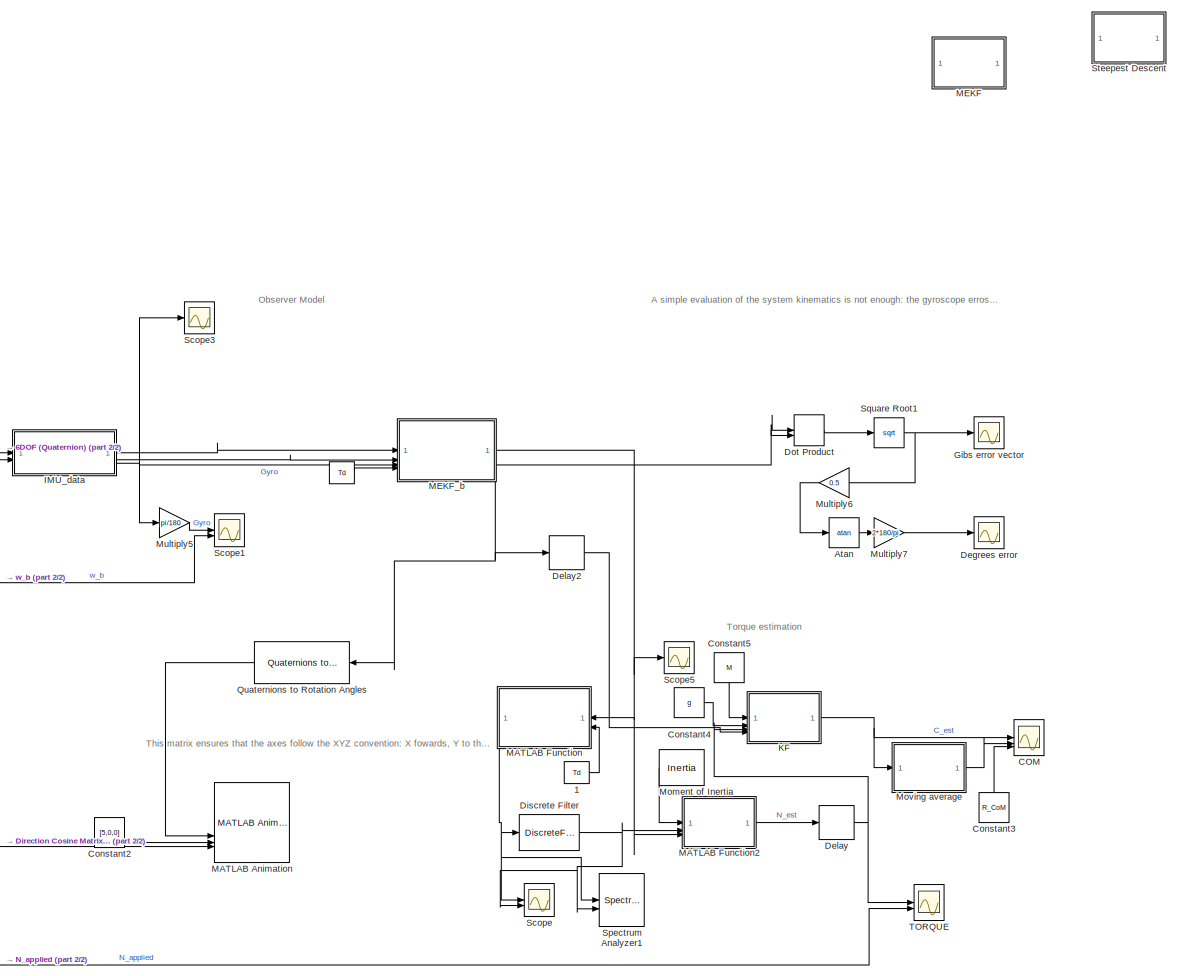
[diagram: root canvas - part 1/2, right side, full height]
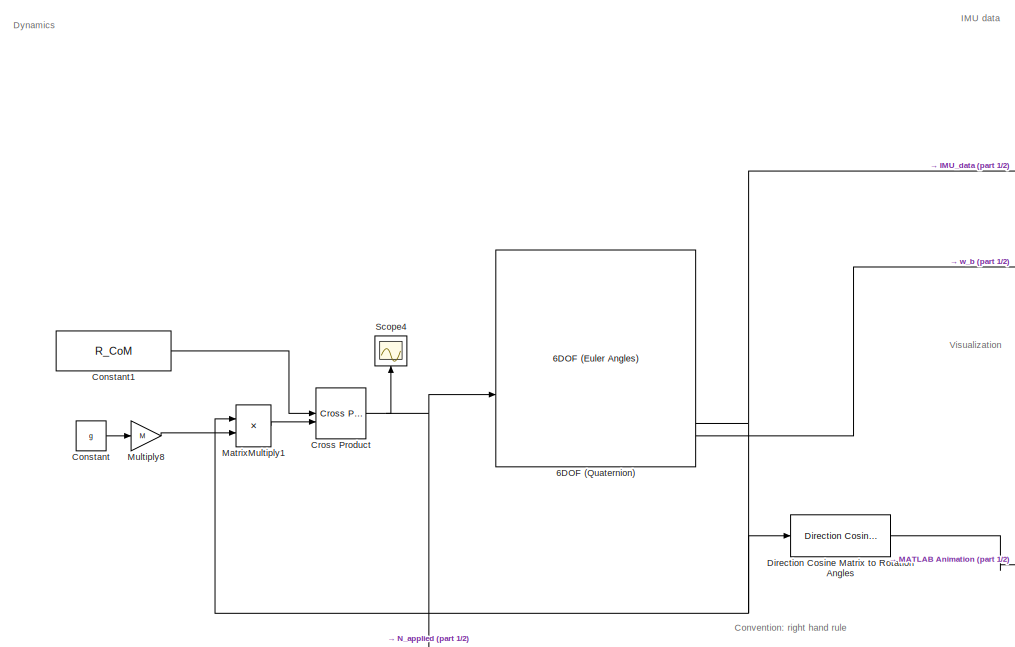
[diagram: root canvas - part 2/2, middle left region]
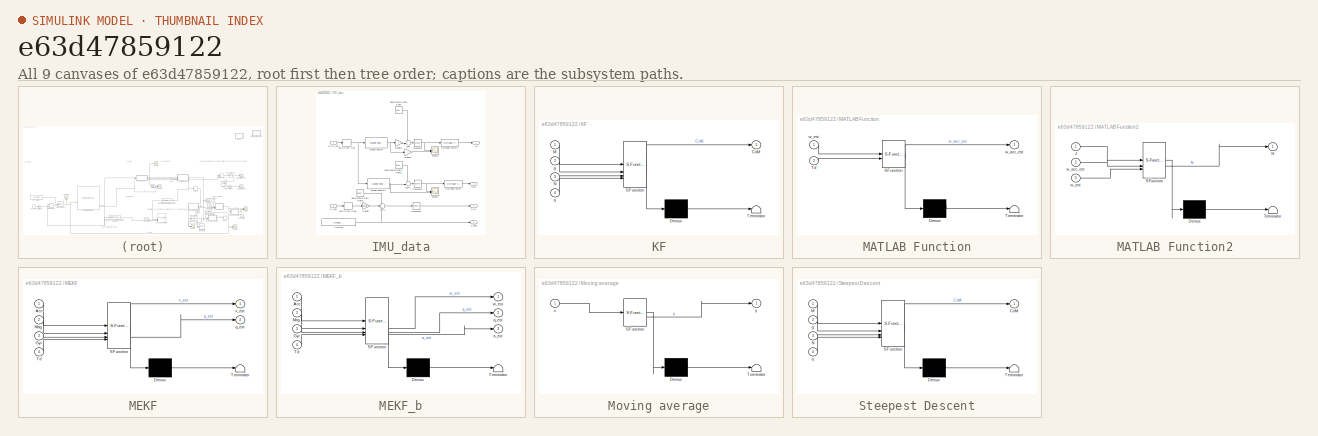
[diagram: thumbnail index - all 9 canvases of the model, root first then tree order]
MODEL slx_e63d47859122
KIND model
CONFIG AbsTol = auto
CONFIG EnableMultiTasking = off
CONFIG FixedStep = auto
CONFIG MaxStep = auto
CONFIG MinStep = auto
CONFIG RelTol = 1e-3
CONFIG SampleTimeConstraint = Unconstrained
CONFIG SolverName = VariableStepAuto
CONFIG StartTime = 0.0
CONFIG StopTime = 40
WORKSPACE source: mxarray member
WORKSPACE Inertia = [0.003 5.355e-05 0.000214 5.355e-05 0.003 -0.0001778 0.000214 -0.0001778 0.003]
WORKSPACE M = 0.975
WORKSPACE R_CoM = [0.0004985 5.61e-05 0.001]
WORKSPACE Td: Simulink.Parameter (value not decoded)
WORKSPACE g = [0 0 -9.81]
BLOCK [Constant]  
  SampleTime = Td
  Value = Td
BLOCK [Constant]  1
  SampleTime = Td
  Value = Td
BLOCK [Reference] 6DOF (Quaternion)  REF=shared6dof/6DOF (Euler Angles)
  LibrarySourceBlock = aerolib6dof2/6DOF (Quaternion)
  SourceBlock = shared6dof/6DOF (Euler Angles)
  SourceType = 6DOF EoM (Body Axis)
BLOCK [Trigonometry] Atan
  Operator = atan
BLOCK [Scope] COM
  Floating = off
  NumInputPorts = 3
  ScopeSpecificationString = Simulink.scopes.TimeScopeBlockCfg('CurrentConfiguration', extmgr.ConfigurationSet(extmgr.Configuration('Core','General UI',true),extmgr.Configuration('Core','Source UI',true),extmgr.Configuration('Sources','WiredSimulink',true,'DataLoggingVariableName','ScopeData7'),extmgr.Configuration('Visuals','Time Domain',true,'SerializedDisplays',{struct('MinYLimReal','-0.00042','MaxYLimReal','0.00147','YLab...<+1796ch>
BLOCK [Constant] Constant
  SampleTime = -1
  Value = g
BLOCK [Constant] Constant1
  SampleTime = -1
  Value = R_CoM
BLOCK [Constant] Constant2
  Value = [5,0,0]
BLOCK [Constant] Constant3
  NameLocation = right
  SampleTime = -1
  Value = R_CoM
BLOCK [Constant] Constant4
  Value = g
BLOCK [Constant] Constant5
  NameLocation = left
  Value = M
BLOCK [Reference] Cross Product  REF=matrix_library/Cross Product
  LibrarySourceBlock = simulink/Matrix\nOperations/Cross Product
  SourceBlock = matrix_library/Cross Product
  SourceType = CrossProduct
BLOCK [Scope] Degrees error
  Floating = off
  NumInputPorts = 1
  ScopeSpecificationString = Simulink.scopes.TimeScopeBlockCfg('CurrentConfiguration', extmgr.ConfigurationSet(extmgr.Configuration('Core','General UI',true),extmgr.Configuration('Core','Source UI',true),extmgr.Configuration('Sources','WiredSimulink',true,'DataLoggingVariableName','ScopeData1'),extmgr.Configuration('Visuals','Time Domain',true,'SerializedDisplays',{struct('MinYLimReal','-2.61487','MaxYLimReal','24.14064','YLa...<+1424ch>
BLOCK [Delay] Delay
  Commented = through
  DelayLength = 5
  InputPortMap = u0
BLOCK [Delay] Delay2
  DelayLength = 15
  InputPortMap = u0
BLOCK [Reference] Direction Cosine Matrix to Rotation Angles  REF=sharedtransform/Direction Cosine Matrix
to Rotation Angles
  AttributesFormatString = Rotation Order: %<rotationOrder>
  LibrarySourceBlock = aerolibtransform2/Direction Cosine Matrix\nto Rotation Angles
  SourceBlock = sharedtransform/Direction Cosine Matrix\nto Rotation Angles
  SourceType = DCM2Ang
BLOCK [DiscreteFilter] Discrete Filter
  Denominator = [1 -3.4788 4.5680 -2.6809 0.5930]
  InputPortMap = u0
  Numerator = [0 5.9995e-05 5.9356e-04 5.3466e-04 4.3847e-05]
BLOCK [DotProduct] Dot Product
  OutDataTypeStr = Inherit: Inherit via internal rule
BLOCK [Scope] Gibs error vector
  Floating = off
  NumInputPorts = 1
  ScopeSpecificationString = Simulink.scopes.TimeScopeBlockCfg('CurrentConfiguration', extmgr.ConfigurationSet(extmgr.Configuration('Core','General UI',true),extmgr.Configuration('Core','Source UI',true),extmgr.Configuration('Sources','WiredSimulink',true,'DataLoggingVariableName','ScopeData2'),extmgr.Configuration('Visuals','Time Domain',true,'SerializedDisplays',{struct('MinYLimReal','-0.0408','MaxYLimReal','0.42328','YLabe...<+1610ch>
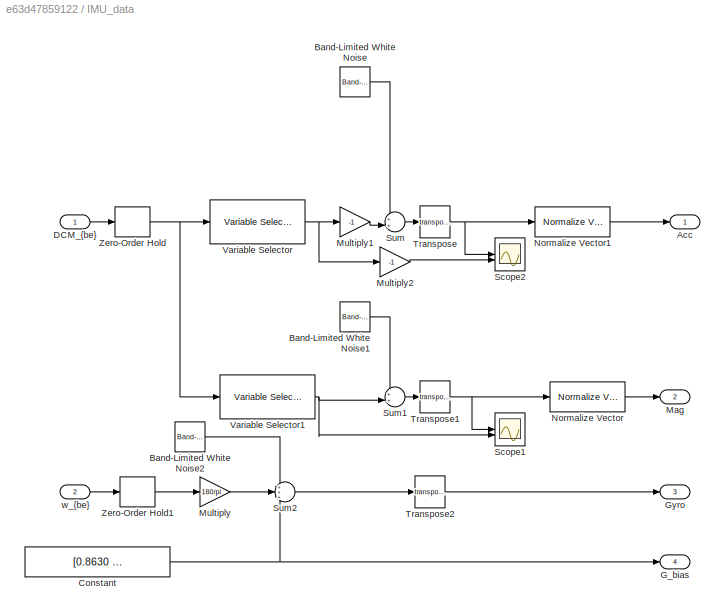
BLOCK [SubSystem] IMU_data
BLOCK [Outport] IMU_data/Acc
BLOCK [Reference] IMU_data/Band-Limited White Noise  REF=simulink/Sources/Band-Limited
White Noise
  SourceBlock = simulink/Sources/Band-Limited\nWhite Noise
  SourceType = Band-Limited White Noise.
BLOCK [Reference] IMU_data/Band-Limited White Noise1  REF=simulink/Sources/Band-Limited
White Noise
  SourceBlock = simulink/Sources/Band-Limited\nWhite Noise
  SourceType = Band-Limited White Noise.
BLOCK [Reference] IMU_data/Band-Limited White Noise2  REF=simulink/Sources/Band-Limited
White Noise
  SourceBlock = simulink/Sources/Band-Limited\nWhite Noise
  SourceType = Band-Limited White Noise.
BLOCK [Constant] IMU_data/Constant
  SampleTime = Td
  Value = [0.8630    0.4062    0.1584]
BLOCK [Inport] IMU_data/DCM_{be}
BLOCK [Outport] IMU_data/G_bias
  Port = 4
BLOCK [Outport] IMU_data/Gyro
  Port = 3
BLOCK [Outport] IMU_data/Mag
  Port = 2
BLOCK [Gain] IMU_data/Multiply
  Gain = 180/pi
BLOCK [Gain] IMU_data/Multiply1
  Gain = -1
BLOCK [Gain] IMU_data/Multiply2
  Gain = -1
BLOCK [Reference] IMU_data/Normalize Vector  REF=vrlib/Utilities/Normalize Vector
  SourceBlock = vrlib/Utilities/Normalize Vector
  SourceType = Normalize Vector
BLOCK [Reference] IMU_data/Normalize Vector1  REF=vrlib/Utilities/Normalize Vector
  SourceBlock = vrlib/Utilities/Normalize Vector
  SourceType = Normalize Vector
BLOCK [Scope] IMU_data/Scope1
  Floating = off
  NumInputPorts = 2
  ScopeSpecificationString = Simulink.scopes.TimeScopeBlockCfg('CurrentConfiguration', extmgr.ConfigurationSet(extmgr.Configuration('Core','General UI',true),extmgr.Configuration('Core','Source UI',true),extmgr.Configuration('Sources','WiredSimulink',true,'DataLoggingVariableName','ScopeData2'),extmgr.Configuration('Visuals','Time Domain',true,'SerializedDisplays',{struct('MinYLimReal','-0.29992','MaxYLimReal','1.25839','YLab...<+1644ch>
BLOCK [Scope] IMU_data/Scope2
  Floating = off
  NumInputPorts = 2
  ScopeSpecificationString = Simulink.scopes.TimeScopeBlockCfg('CurrentConfiguration', extmgr.ConfigurationSet(extmgr.Configuration('Core','General UI',true),extmgr.Configuration('Core','Source UI',true),extmgr.Configuration('Sources','WiredSimulink',true,'DataLoggingVariableName','ScopeData1'),extmgr.Configuration('Visuals','Time Domain',true,'SerializedDisplays',{struct('MinYLimReal','-1.3146','MaxYLimReal','1.30837','YLabe...<+1609ch>
BLOCK [Sum] IMU_data/Sum
  Inputs = ++|
BLOCK [Sum] IMU_data/Sum1
  Inputs = ++|
BLOCK [Sum] IMU_data/Sum2
  Inputs = +++
BLOCK [Math] IMU_data/Transpose
  Commented = through
  Operator = transpose
BLOCK [Math] IMU_data/Transpose1
  Commented = through
  Operator = transpose
BLOCK [Math] IMU_data/Transpose2
  Commented = through
  Operator = transpose
BLOCK [Reference] IMU_data/Variable Selector  REF=dspindex/Variable
Selector
  SourceBlock = dspindex/Variable\nSelector
  SourceType = Variable Selector
BLOCK [Reference] IMU_data/Variable Selector1  REF=dspindex/Variable
Selector
  SourceBlock = dspindex/Variable\nSelector
  SourceType = Variable Selector
BLOCK [ZeroOrderHold] IMU_data/Zero-Order Hold
  SampleTime = Td
BLOCK [ZeroOrderHold] IMU_data/Zero-Order Hold1
  SampleTime = Td
BLOCK [Inport] IMU_data/w_{be}
  Port = 2
BLOCK [SubSystem] KF
  ErrorFcn = Stateflow.Translate.translate
  LibrarySourceBlock = simulink/User-Defined\nFunctions/MATLAB Function
  PermitHierarchicalResolution = ExplicitOnly
  SFBlockType = MATLAB Function
  TreatAsAtomicUnit = on
BLOCK [Demux] KF/ Demux 
  Outputs = 1
BLOCK [S-Function] KF/ SFunction 
  EnableBusSupport = on
  FunctionName = sf_sfun
  PortCounts = [4 2]
  SFcnIsStateOwnerBlock = off
  SFunctionDeploymentMode = off
  Tag = Stateflow S-Function 9
BLOCK [Terminator] KF/ Terminator 
BLOCK [Outport] KF/CoM
BLOCK [Inport] KF/M
BLOCK [Inport] KF/N
  Port = 3
BLOCK [Inport] KF/g
  Port = 2
BLOCK [Inport] KF/q
  Port = 4
BLOCK [Reference] MATLAB Animation  REF=aerolibanim/MATLAB
Animation
  SourceBlock = aerolibanim/MATLAB\nAnimation
  SourceType = AeroMATLABAnimation
  Tag = Matlab Animation 6 DOF
BLOCK [SubSystem] MATLAB Function
  ErrorFcn = Stateflow.Translate.translate
  LibrarySourceBlock = simulink/User-Defined\nFunctions/MATLAB Function
  NameLocation = top
  PermitHierarchicalResolution = ExplicitOnly
  SFBlockType = MATLAB Function
  TreatAsAtomicUnit = on
BLOCK [Demux] MATLAB Function/ Demux 
  Outputs = 1
BLOCK [S-Function] MATLAB Function/ SFunction 
  EnableBusSupport = on
  FunctionName = sf_sfun
  PortCounts = [2 2]
  SFcnIsStateOwnerBlock = off
  SFunctionDeploymentMode = off
  Tag = Stateflow S-Function 5
BLOCK [Terminator] MATLAB Function/ Terminator 
BLOCK [Inport] MATLAB Function/Td
  Port = 2
BLOCK [Outport] MATLAB Function/w_acc_est
BLOCK [Inport] MATLAB Function/w_est
BLOCK [SubSystem] MATLAB Function2
  ErrorFcn = Stateflow.Translate.translate
  LibrarySourceBlock = simulink/User-Defined\nFunctions/MATLAB Function
  PermitHierarchicalResolution = ExplicitOnly
  SFBlockType = MATLAB Function
  TreatAsAtomicUnit = on
BLOCK [Demux] MATLAB Function2/ Demux 
  Outputs = 1
BLOCK [S-Function] MATLAB Function2/ SFunction 
  EnableBusSupport = on
  FunctionName = sf_sfun
  PortCounts = [3 2]
  SFcnIsStateOwnerBlock = off
  SFunctionDeploymentMode = off
  Tag = Stateflow S-Function 6
BLOCK [Terminator] MATLAB Function2/ Terminator 
BLOCK [Inport] MATLAB Function2/J
BLOCK [Outport] MATLAB Function2/N
BLOCK [Inport] MATLAB Function2/w_acc_est
  Port = 2
BLOCK [Inport] MATLAB Function2/w_est
  Port = 3
BLOCK [SubSystem] MEKF
  Commented = on
  ErrorFcn = Stateflow.Translate.translate
  LibrarySourceBlock = simulink/User-Defined\nFunctions/MATLAB Function
  PermitHierarchicalResolution = ExplicitOnly
  SFBlockType = MATLAB Function
  SystemSampleTime = Td
  TreatAsAtomicUnit = on
BLOCK [Demux] MEKF/ Demux 
  Outputs = 1
BLOCK [S-Function] MEKF/ SFunction 
  EnableBusSupport = on
  FunctionName = sf_sfun
  PortCounts = [4 3]
  SFcnIsStateOwnerBlock = off
  SFunctionDeploymentMode = off
  Tag = Stateflow S-Function 3
BLOCK [Terminator] MEKF/ Terminator 
BLOCK [Inport] MEKF/Acc
BLOCK [Inport] MEKF/Gyr
  Port = 3
BLOCK [Inport] MEKF/Mag
  Port = 2
BLOCK [Inport] MEKF/Td
  Port = 4
BLOCK [Outport] MEKF/q_est
  Port = 2
BLOCK [Outport] MEKF/x_est
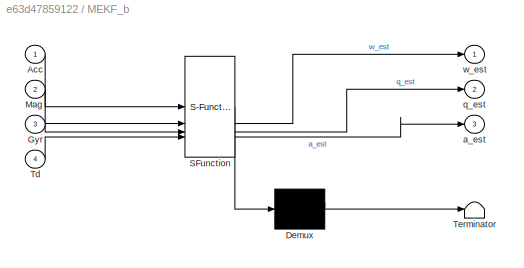
BLOCK [SubSystem] MEKF_b
  ErrorFcn = Stateflow.Translate.translate
  LibrarySourceBlock = simulink/User-Defined\nFunctions/MATLAB Function
  PermitHierarchicalResolution = ExplicitOnly
  SFBlockType = MATLAB Function
  SystemSampleTime = Td
  TreatAsAtomicUnit = on
BLOCK [Demux] MEKF_b/ Demux 
  Outputs = 1
BLOCK [S-Function] MEKF_b/ SFunction 
  EnableBusSupport = on
  FunctionName = sf_sfun
  PortCounts = [4 4]
  SFcnIsStateOwnerBlock = off
  SFunctionDeploymentMode = off
  Tag = Stateflow S-Function 4
BLOCK [Terminator] MEKF_b/ Terminator 
BLOCK [Inport] MEKF_b/Acc
BLOCK [Inport] MEKF_b/Gyr
  Port = 3
BLOCK [Inport] MEKF_b/Mag
  Port = 2
BLOCK [Inport] MEKF_b/Td
  Port = 4
BLOCK [Outport] MEKF_b/a_est
  Port = 3
BLOCK [Outport] MEKF_b/q_est
  Port = 2
BLOCK [Outport] MEKF_b/w_est
BLOCK [Product] MatrixMultiply1
  Multiplication = Matrix(*)
BLOCK [Constant] Moment of Inertia
  NameLocation = top
  Value = Inertia
BLOCK [SubSystem] Moving average
  ErrorFcn = Stateflow.Translate.translate
  LibrarySourceBlock = simulink/User-Defined\nFunctions/MATLAB Function
  PermitHierarchicalResolution = ExplicitOnly
  SFBlockType = MATLAB Function
  TreatAsAtomicUnit = on
BLOCK [Demux] Moving average/ Demux 
  Outputs = 1
BLOCK [S-Function] Moving average/ SFunction 
  EnableBusSupport = on
  FunctionName = sf_sfun
  PortCounts = [1 2]
  SFcnIsStateOwnerBlock = off
  SFunctionDeploymentMode = off
  Tag = Stateflow S-Function 1
BLOCK [Terminator] Moving average/ Terminator 
BLOCK [Inport] Moving average/u
BLOCK [Outport] Moving average/y
BLOCK [Gain] Multiply5
  Gain = pi/180
BLOCK [Gain] Multiply6
  Gain = 0.5
  NameLocation = top
BLOCK [Gain] Multiply7
  Gain = 2*180/pi
BLOCK [Gain] Multiply8
  Gain = M
BLOCK [Reference] Quaternions to Rotation Angles  REF=sharedtransform/Quaternions to Rotation Angles
  AttributesFormatString = Rotation Order: %<rotationOrder>
  LibrarySourceBlock = aerolibtransform2/Quaternions to Rotation Angles
  NameLocation = top
  SourceBlock = sharedtransform/Quaternions to Rotation Angles
  SourceType = Quat2Ang
BLOCK [Scope] Scope
  Floating = off
  NumInputPorts = 2
  ScopeSpecificationString = Simulink.scopes.TimeScopeBlockCfg('CurrentConfiguration', extmgr.ConfigurationSet(extmgr.Configuration('Core','General UI',true),extmgr.Configuration('Core','Source UI',true),extmgr.Configuration('Sources','WiredSimulink',true,'DataLoggingVariableName','ScopeData2'),extmgr.Configuration('Visuals','Time Domain',true,'SerializedDisplays',{struct('MinYLimReal','-9.52322','MaxYLimReal','10.75543','YLa...<+1672ch>
BLOCK [Scope] Scope1
  Floating = off
  NumInputPorts = 2
  ScopeSpecificationString = Simulink.scopes.TimeScopeBlockCfg('CurrentConfiguration', extmgr.ConfigurationSet(extmgr.Configuration('Core','General UI',true),extmgr.Configuration('Core','Source UI',true),extmgr.Configuration('Sources','WiredSimulink',true,'DataLoggingVariableName','ScopeData1'),extmgr.Configuration('Visuals','Time Domain',true,'SerializedDisplays',{struct('MinYLimReal','-200.90622','MaxYLimReal','200.90622','...<+1606ch>
BLOCK [Scope] Scope3
  Floating = off
  NumInputPorts = 1
  ScopeSpecificationString = Simulink.scopes.TimeScopeBlockCfg('CurrentConfiguration', extmgr.ConfigurationSet(extmgr.Configuration('Core','General UI',true),extmgr.Configuration('Core','Source UI',true),extmgr.Configuration('Sources','WiredSimulink',true,'DataLoggingVariableName','ScopeData2'),extmgr.Configuration('Visuals','Time Domain',true,'SerializedDisplays',{struct('MinYLimReal','-272.03979','MaxYLimReal','222.08822','...<+1521ch>
BLOCK [Scope] Scope4
  Floating = off
  NameLocation = right
  NumInputPorts = 1
  ScopeSpecificationString = Simulink.scopes.TimeScopeBlockCfg('CurrentConfiguration', extmgr.ConfigurationSet(extmgr.Configuration('Core','General UI',true),extmgr.Configuration('Core','Source UI',true),extmgr.Configuration('Sources','WiredSimulink',true,'DataLoggingVariableName','ScopeData3'),extmgr.Configuration('Visuals','Time Domain',true,'SerializedDisplays',{struct('MinYLimReal','-0.01196','MaxYLimReal','0.01196','YLab...<+1516ch>
BLOCK [Scope] Scope5
  Floating = off
  NumInputPorts = 1
  ScopeSpecificationString = Simulink.scopes.TimeScopeBlockCfg('CurrentConfiguration', extmgr.ConfigurationSet(extmgr.Configuration('Core','General UI',true),extmgr.Configuration('Core','Source UI',true),extmgr.Configuration('Sources','WiredSimulink',true,'DataLoggingVariableName','ScopeData3'),extmgr.Configuration('Visuals','Time Domain',true,'SerializedDisplays',{struct('MinYLimReal','-4.52408','MaxYLimReal','4.60288','YLab...<+1453ch>
BLOCK [SpectrumAnalyzer] Spectrum Analyzer1
  Commented = on
  NumInputPorts = 2
  ScopeSpecificationString = spbscopes.SpectrumAnalyzerBlockCfg('CurrentConfiguration', extmgr.ConfigurationSet(extmgr.Configuration('Core','General UI',true),extmgr.Configuration('Core','Source UI',true),extmgr.Configuration('Sources','WiredSimulink',true),extmgr.Configuration('Visuals','Spectrum',true,'AxesProperties',struct('Color',{[0 0 0],[0 0 0]},'XColor',{[0.686274509803922 0.686274509803922 0.686274509803922],[0.68627...<+1971ch>
BLOCK [Sqrt] Square Root1
BLOCK [SubSystem] Steepest Descent
  Commented = on
  ErrorFcn = Stateflow.Translate.translate
  LibrarySourceBlock = simulink/User-Defined\nFunctions/MATLAB Function
  PermitHierarchicalResolution = ExplicitOnly
  SFBlockType = MATLAB Function
  TreatAsAtomicUnit = on
BLOCK [Demux] Steepest Descent/ Demux 
  Outputs = 1
BLOCK [S-Function] Steepest Descent/ SFunction 
  EnableBusSupport = on
  FunctionName = sf_sfun
  PortCounts = [4 2]
  SFcnIsStateOwnerBlock = off
  SFunctionDeploymentMode = off
  Tag = Stateflow S-Function 7
BLOCK [Terminator] Steepest Descent/ Terminator 
BLOCK [Outport] Steepest Descent/CoM
BLOCK [Inport] Steepest Descent/M
BLOCK [Inport] Steepest Descent/N
  Port = 3
BLOCK [Inport] Steepest Descent/g
  Port = 2
BLOCK [Inport] Steepest Descent/q
  Port = 4
BLOCK [Scope] TORQUE
  Floating = off
  NumInputPorts = 2
  ScopeSpecificationString = Simulink.scopes.TimeScopeBlockCfg('CurrentConfiguration', extmgr.ConfigurationSet(extmgr.Configuration('Core','General UI',true),extmgr.Configuration('Core','Source UI',true),extmgr.Configuration('Sources','WiredSimulink',true,'DataLoggingVariableName','ScopeData4'),extmgr.Configuration('Visuals','Time Domain',true,'SerializedDisplays',{struct('MinYLimReal','-0.01425','MaxYLimReal','0.01386','YLab...<+1697ch>
ANNOTATION (root): Dynamics
ANNOTATION (root): IMU data
ANNOTATION (root): Observer Model
ANNOTATION (root): Visualization
ANNOTATION (root): Torque estimation
ANNOTATION (root): A simple evaluation of the system kinematics is not enough: the gyroscope erros cause the system to slowly drift away from the real case
ANNOTATION (root): Convention: right hand rule
ANNOTATION (root): This matrix ensures that the axes follow the XYZ convention: X fowards, Y to the left and Z up. Note that positive rotation is counterclockwise (this is an issue with the visulatization tool, not the math)
LINE  1:1 -> MATLAB Function:2
LINE  :1 -> MEKF_b:4
NET 6DOF (Quaternion):4 -> Direction Cosine Matrix to Rotation Angles:1, IMU_data:1, MatrixMultiply1:1
NET 6DOF (Quaternion):6 -> IMU_data:2, Scope1:2
LINE Atan:1 -> Multiply7:1
LINE Constant1:1 -> Cross Product:1
LINE Constant2:1 -> MATLAB Animation:3
LINE Constant3:1 -> COM:3
LINE Constant4:1 -> KF:2
LINE Constant5:1 -> KF:1
LINE Constant:1 -> Multiply8:1
NET Cross Product:1 -> 6DOF (Quaternion):2, Scope4:1, TORQUE:2
LINE Delay2:1 -> KF:4
NET Delay:1 -> KF:3, TORQUE:1
LINE Direction Cosine Matrix to Rotation Angles:1 -> MATLAB Animation:4
NET Discrete Filter:1 -> MATLAB Function2:2, Scope:2, Spectrum Analyzer1:2
LINE Dot Product:1 -> Square Root1:1
LINE IMU_data/Band-Limited White Noise1:1 -> IMU_data/Sum1:1
LINE IMU_data/Band-Limited White Noise2:1 -> IMU_data/Sum2:1
LINE IMU_data/Band-Limited White Noise:1 -> IMU_data/Sum:1
NET IMU_data/Constant:1 -> IMU_data/G_bias:1, IMU_data/Sum2:3
LINE IMU_data/DCM_{be}:1 -> IMU_data/Zero-Order Hold:1
LINE IMU_data/Multiply1:1 -> IMU_data/Sum:2
LINE IMU_data/Multiply2:1 -> IMU_data/Scope2:2
LINE IMU_data/Multiply:1 -> IMU_data/Sum2:2
LINE IMU_data/Normalize Vector1:1 -> IMU_data/Acc:1
LINE IMU_data/Normalize Vector:1 -> IMU_data/Mag:1
LINE IMU_data/Sum1:1 -> IMU_data/Transpose1:1
LINE IMU_data/Sum2:1 -> IMU_data/Transpose2:1
LINE IMU_data/Sum:1 -> IMU_data/Transpose:1
NET IMU_data/Transpose1:1 -> IMU_data/Normalize Vector:1, IMU_data/Scope1:1
LINE IMU_data/Transpose2:1 -> IMU_data/Gyro:1
NET IMU_data/Transpose:1 -> IMU_data/Normalize Vector1:1, IMU_data/Scope2:1
NET IMU_data/Variable Selector1:1 -> IMU_data/Scope1:2, IMU_data/Sum1:2
NET IMU_data/Variable Selector:1 -> IMU_data/Multiply1:1, IMU_data/Multiply2:1
LINE IMU_data/Zero-Order Hold1:1 -> IMU_data/Multiply:1
NET IMU_data/Zero-Order Hold:1 -> IMU_data/Variable Selector1:1, IMU_data/Variable Selector:1
LINE IMU_data/w_{be}:1 -> IMU_data/Zero-Order Hold1:1
LINE IMU_data:1 -> MEKF_b:1
LINE IMU_data:2 -> MEKF_b:2
NET IMU_data:3 -> MEKF_b:3, Multiply5:1, Scope3:1
NET KF:1 -> COM:1, Moving average:1
LINE MATLAB Function2:1 -> Delay:1
NET MATLAB Function:1 -> Discrete Filter:1, Scope:1, Spectrum Analyzer1:1
NET MEKF_b:1 -> MATLAB Function2:3, MATLAB Function:1, Scope5:1
NET MEKF_b:2 -> Delay2:1, Quaternions to Rotation Angles:1
NET MEKF_b:3 -> Dot Product:1, Dot Product:2
LINE MatrixMultiply1:1 -> Cross Product:2
LINE Moment of Inertia:1 -> MATLAB Function2:1
LINE Moving average:1 -> COM:2
LINE Multiply5:1 -> Scope1:1
LINE Multiply6:1 -> Atan:1
LINE Multiply7:1 -> Degrees error:1
LINE Multiply8:1 -> MatrixMultiply1:2
LINE Quaternions to Rotation Angles:1 -> MATLAB Animation:2
NET Square Root1:1 -> Gibs error vector:1, Multiply6:1
note: NET lines group one-source signal fan-out (src -> all destinations, sorted); 1:1 wires keep LINE
CHART Moving average states=1 transitions=1
  STATE_LABEL 'eML_blk_kernel()'
  STATE_LABEL "SCRIPT:\nfunction y = Moving_Average(u)\n    L = 2000;\n    persistent stored\n    persistent i\n    if isempty(i)\n        i = 1;\n    end\n    if isempty(stored)\n        stored = zeros(3,L);\n    end\n    stored(:,2:L) = stored(:,1:L-1);\n    stored(:,1) = u;\ny = sum(stored')'/i;\n\nif(i < L)\n    i = i+1;\nend\n\n"
CHART MEKF states=1 transitions=1
  STATE_LABEL 'eML_blk_kernel()'
  STATE_LABEL "SCRIPT:\nfunction [x_est,q_est] = fcn(Acc,Mag,Gyr,Td)\n% Td is the time step\n% Acc is the normalised vector of gravity.\n% Mag is normalised, points to x coordinate\n% Gyr  is in degrees/s, in body coordinates.\npersistent q % q1,q2,q3,q4 with q4 as double\npersistent x\npersistent P\n% Initialization\nQ =diag([0.0149;    0.0162;    0.0127]/180*pi);\nR = 0.01*eye(6);\n\nif isempty(q)\n    q = [0,0,0,1]';   % I...<+877ch>"
CHART MEKF_b states=1 transitions=1
  STATE_LABEL 'eML_blk_kernel()'
  STATE_LABEL 'SCRIPT:\nfunction [w_est,q_est,a_est]  = MEKF(Acc,Mag,Gyr,Td)\n% Td is the time step\n% Acc is the normalised vector of gravity.\n% Mag is normalised, points to x coordinate\n% Gyr  is in degrees/s, in body coordinates.\npersistent q % q1,q2,q3,q4 with q4 as double\npersistent x\npersistent P\n% Initialization\n%Q =diag([0.0149;    .0162;    0.0127; 0.01; 0.01; 0.01]/180*pi);\n%R = 0.01*eye(6);\nR = diag([0.0...<+1199ch>'
CHART MATLAB Function states=1 transitions=1
  STATE_LABEL 'eML_blk_kernel()'
  STATE_LABEL 'SCRIPT:\nfunction w_acc_est = estimate_acc(w_est,Td)\npersistent w_prev\nif isempty(w_prev)\n    w_prev = w_est;\nend\nw_acc_est = 1/Td*(w_est-w_prev);\nw_prev = w_est;\n\n'
CHART MATLAB Function2 states=1 transitions=1
  STATE_LABEL 'eML_blk_kernel()'
  STATE_LABEL 'SCRIPT:\nfunction N = fcn(J,w_acc_est,w_est)\n    N = J*w_acc_est - cross(w_est,J*w_est);\nend'
CHART Steepest Descent states=1 transitions=1
  STATE_LABEL 'eML_blk_kernel()'
  STATE_LABEL "SCRIPT:\nfunction CoM  = CoM(M,g,N,q)\npersistent R\nmu = 0.00005;\nif isempty(R)\n    R = [0;0;0];\nend\nq = [q(2:4);q(1)];\nA = (q(4)^2-norm(q(1:3))^2)*eye(3,3)+2*q(1:3)*q(1:3)'-2*q(4)*skew3(q(1:3));\ng_b = A*g;\n\nR = R + mu*cross(g_b,cross(g_b,R*M)+N);\nCoM = -R;\nend\n\n\n"
CHART KF states=1 transitions=1
  STATE_LABEL 'eML_blk_kernel()'
  STATE_LABEL "SCRIPT:\nfunction CoM  = CoM(M,g,N,q)\n% States: R (CoM)\n% Inputs: none\n% Outputs: N\npersistent x\npersistent P\nif isempty(x)\n    x = [0;0;0];\nend\nif isempty(P)\n    P = eye(3,3);\nend\nq = [q(2:4);q(1)];\nA = (q(4)^2-norm(q(1:3))^2)*eye(3,3)+2*q(1:3)*q(1:3)'-2*q(4)*skew3(q(1:3));\nskew_g = -skew3(A*g);\n\nQ = 0.01*eye(3,3);\nR = eye(3,3);\n% Update equations\nx = x; % No update\nF = eye(3,3);\nH = skew_g*M;\nP =...<+138ch>"
CHART  states=0 transitions=0
CHART  states=0 transitions=0
CHART  states=0 transitions=0
CHART  states=0 transitions=0
CHART  states=0 transitions=0
CHART  states=0 transitions=0
CHART  states=0 transitions=0
